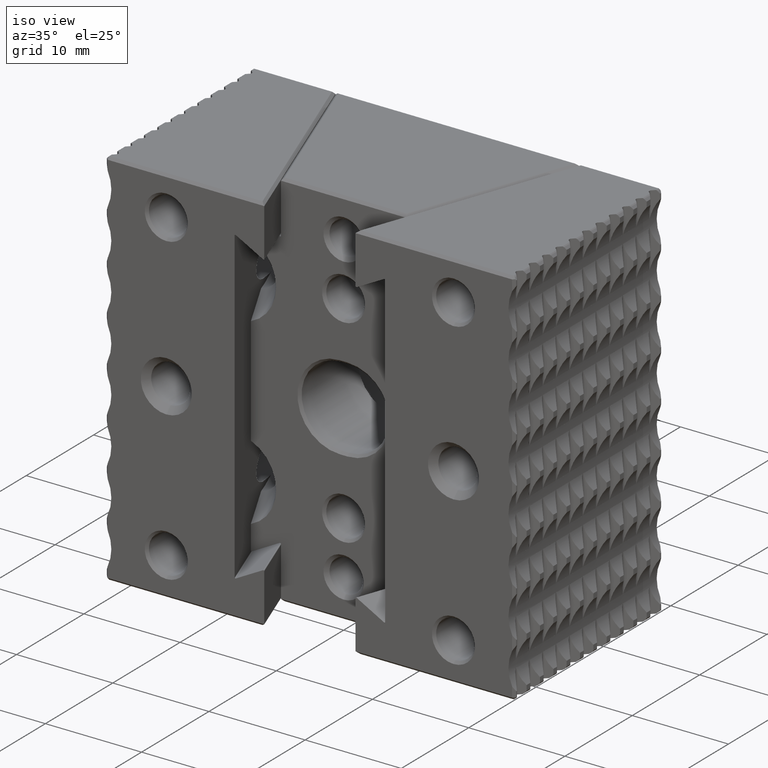
[diagram: clean part render]
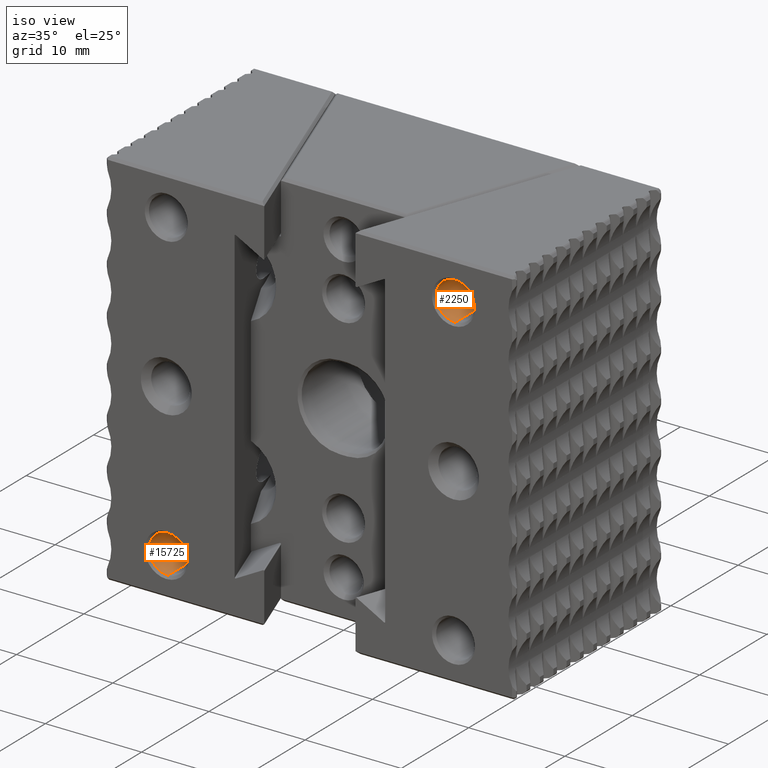
[diagram: same view with one multi-face feature highlighted, each face labeled with its STEP entity id]
A machine part, iso view. The highlighted faces form ONE feature: a constant-radius fillet chain: 2 tangent blend faces with common blend radius 1.9875 mm. The faces share edges in the B-rep.
Their STEP definitions:
[1] entity #15725 (Cylinder):
#427 = EDGE_CURVE ( 'NONE', #26668, #1863, #8106, .T. ) ;
#492 = FACE_OUTER_BOUND ( 'NONE', #30211, .T. ) ;
#998 = CARTESIAN_POINT ( 'NONE',  ( 0.2500000000000000000, 0.2000000000000000111, -0.7032499999999999307 ) ) ;
#1863 = VERTEX_POINT ( 'NONE', #998 ) ;
#3620 = CARTESIAN_POINT ( 'NONE',  ( 0.2500000000000000000, 0.2000000000000000111, -0.5467500000000000693 ) ) ;
#4140 = ORIENTED_EDGE ( 'NONE', *, *, #29918, .T. ) ;
#5367 = DIRECTION ( 'NONE',  ( 0.0000000000000000000, -1.000000000000000000, 0.0000000000000000000 ) ) ;
#5621 = CYLINDRICAL_SURFACE ( 'NONE', #19088, 0.07824999999999990297 ) ;
#7206 = CARTESIAN_POINT ( 'NONE',  ( 0.2500000000000000000, 0.01000000000000064379, -0.5467500000000000693 ) ) ;
#7486 = DIRECTION ( 'NONE',  ( 0.0000000000000000000, 0.0000000000000000000, -1.000000000000000000 ) ) ;
#7726 = VERTEX_POINT ( 'NONE', #17359 ) ;
#7804 = CARTESIAN_POINT ( 'NONE',  ( 0.2500000000000000000, 0.2000000000000000111, -0.6250000000000000000 ) ) ;
#8106 = CIRCLE ( 'NONE', #16648, 0.07824999999999990297 ) ;
#10047 = DIRECTION ( 'NONE',  ( -0.0000000000000000000, -1.000000000000000000, -0.0000000000000000000 ) ) ;
#10357 = DIRECTION ( 'NONE',  ( 0.0000000000000000000, 0.0000000000000000000, -1.000000000000000000 ) ) ;
#11691 = CARTESIAN_POINT ( 'NONE',  ( 0.2500000000000000000, 0.2000000000000000111, -0.5467500000000000693 ) ) ;
#11866 = CARTESIAN_POINT ( 'NONE',  ( 0.2500000000000000000, 0.2000000000000000111, -0.7032499999999999307 ) ) ;
#14178 = ORIENTED_EDGE ( 'NONE', *, *, #427, .F. ) ;
#15243 = AXIS2_PLACEMENT_3D ( 'NONE', #20597, #5367, #23192 ) ;
#15725 = ADVANCED_FACE ( 'NONE', ( #492 ), #5621, .F. ) ;
#16648 = AXIS2_PLACEMENT_3D ( 'NONE', #7804, #25608, #10357 ) ;
#17359 = CARTESIAN_POINT ( 'NONE',  ( 0.2500000000000000000, 0.01000000000000064379, -0.7032499999999999307 ) ) ;
#18607 = ORIENTED_EDGE ( 'NONE', *, *, #29515, .F. ) ;
#19088 = AXIS2_PLACEMENT_3D ( 'NONE', #25289, #10047, #7486 ) ;
#19218 = VECTOR ( 'NONE', #19538, 39.37007874015748143 ) ;
#19538 = DIRECTION ( 'NONE',  ( -0.0000000000000000000, -1.000000000000000000, -0.0000000000000000000 ) ) ;
#20300 = CIRCLE ( 'NONE', #15243, 0.07824999999999997236 ) ;
#20597 = CARTESIAN_POINT ( 'NONE',  ( 0.2500000000000000000, 0.01000000000000064379, -0.6250000000000000000 ) ) ;
#21333 = VERTEX_POINT ( 'NONE', #7206 ) ;
#21402 = DIRECTION ( 'NONE',  ( -0.0000000000000000000, -1.000000000000000000, -0.0000000000000000000 ) ) ;
#23192 = DIRECTION ( 'NONE',  ( 0.0000000000000000000, 0.0000000000000000000, 1.000000000000000000 ) ) ;
#25289 = CARTESIAN_POINT ( 'NONE',  ( 0.2500000000000000000, 0.2000000000000000111, -0.6250000000000000000 ) ) ;
#25571 = VECTOR ( 'NONE', #21402, 39.37007874015748143 ) ;
#25608 = DIRECTION ( 'NONE',  ( 0.0000000000000000000, -1.000000000000000000, 0.0000000000000000000 ) ) ;
#26668 = VERTEX_POINT ( 'NONE', #11691 ) ;
#26784 = LINE ( 'NONE', #11866, #19218 ) ;
#29515 = EDGE_CURVE ( 'NONE', #1863, #7726, #26784, .T. ) ;
#29802 = ORIENTED_EDGE ( 'NONE', *, *, #31521, .T. ) ;
#29918 = EDGE_CURVE ( 'NONE', #26668, #21333, #31531, .T. ) ;
#30211 = EDGE_LOOP ( 'NONE', ( #14178, #4140, #29802, #18607 ) ) ;
#31521 = EDGE_CURVE ( 'NONE', #21333, #7726, #20300, .T. ) ;
#31531 = LINE ( 'NONE', #3620, #25571 ) ;
[2] entity #2250 (Cylinder):
#998 = CARTESIAN_POINT ( 'NONE',  ( 0.2500000000000000000, 0.2000000000000000111, -0.7032499999999999307 ) ) ;
#1863 = VERTEX_POINT ( 'NONE', #998 ) ;
#2250 = ADVANCED_FACE ( 'NONE', ( #19157 ), #18351, .F. ) ;
#3620 = CARTESIAN_POINT ( 'NONE',  ( 0.2500000000000000000, 0.2000000000000000111, -0.5467500000000000693 ) ) ;
#4603 = DIRECTION ( 'NONE',  ( 0.0000000000000000000, 0.0000000000000000000, -1.000000000000000000 ) ) ;
#6733 = AXIS2_PLACEMENT_3D ( 'NONE', #9234, #27051, #11807 ) ;
#7206 = CARTESIAN_POINT ( 'NONE',  ( 0.2500000000000000000, 0.01000000000000064379, -0.5467500000000000693 ) ) ;
#7365 = CIRCLE ( 'NONE', #6733, 0.07824999999999990297 ) ;
#7726 = VERTEX_POINT ( 'NONE', #17359 ) ;
#8671 = CARTESIAN_POINT ( 'NONE',  ( 0.2500000000000000000, 0.01000000000000064379, -0.6250000000000000000 ) ) ;
#9234 = CARTESIAN_POINT ( 'NONE',  ( 0.2500000000000000000, 0.2000000000000000111, -0.6250000000000000000 ) ) ;
#9499 = CARTESIAN_POINT ( 'NONE',  ( 0.2500000000000000000, 0.2000000000000000111, -0.6250000000000000000 ) ) ;
#11207 = DIRECTION ( 'NONE',  ( 0.0000000000000000000, 0.0000000000000000000, 1.000000000000000000 ) ) ;
#11691 = CARTESIAN_POINT ( 'NONE',  ( 0.2500000000000000000, 0.2000000000000000111, -0.5467500000000000693 ) ) ;
#11807 = DIRECTION ( 'NONE',  ( 0.0000000000000000000, 0.0000000000000000000, -1.000000000000000000 ) ) ;
#11866 = CARTESIAN_POINT ( 'NONE',  ( 0.2500000000000000000, 0.2000000000000000111, -0.7032499999999999307 ) ) ;
#12089 = ORIENTED_EDGE ( 'NONE', *, *, #29918, .F. ) ;
#13968 = EDGE_LOOP ( 'NONE', ( #12089, #16853, #24460, #23050 ) ) ;
#16554 = AXIS2_PLACEMENT_3D ( 'NONE', #9499, #29739, #4603 ) ;
#16853 = ORIENTED_EDGE ( 'NONE', *, *, #26704, .F. ) ;
#17359 = CARTESIAN_POINT ( 'NONE',  ( 0.2500000000000000000, 0.01000000000000064379, -0.7032499999999999307 ) ) ;
#17470 = CIRCLE ( 'NONE', #29938, 0.07824999999999997236 ) ;
#18351 = CYLINDRICAL_SURFACE ( 'NONE', #16554, 0.07824999999999990297 ) ;
#19157 = FACE_OUTER_BOUND ( 'NONE', #13968, .T. ) ;
#19218 = VECTOR ( 'NONE', #19538, 39.37007874015748143 ) ;
#19538 = DIRECTION ( 'NONE',  ( -0.0000000000000000000, -1.000000000000000000, -0.0000000000000000000 ) ) ;
#21333 = VERTEX_POINT ( 'NONE', #7206 ) ;
#21402 = DIRECTION ( 'NONE',  ( -0.0000000000000000000, -1.000000000000000000, -0.0000000000000000000 ) ) ;
#23050 = ORIENTED_EDGE ( 'NONE', *, *, #24600, .T. ) ;
#24460 = ORIENTED_EDGE ( 'NONE', *, *, #29515, .T. ) ;
#24600 = EDGE_CURVE ( 'NONE', #7726, #21333, #17470, .T. ) ;
#25571 = VECTOR ( 'NONE', #21402, 39.37007874015748143 ) ;
#26466 = DIRECTION ( 'NONE',  ( 0.0000000000000000000, -1.000000000000000000, 0.0000000000000000000 ) ) ;
#26668 = VERTEX_POINT ( 'NONE', #11691 ) ;
#26704 = EDGE_CURVE ( 'NONE', #1863, #26668, #7365, .T. ) ;
#26784 = LINE ( 'NONE', #11866, #19218 ) ;
#27051 = DIRECTION ( 'NONE',  ( 0.0000000000000000000, -1.000000000000000000, 0.0000000000000000000 ) ) ;
#29515 = EDGE_CURVE ( 'NONE', #1863, #7726, #26784, .T. ) ;
#29739 = DIRECTION ( 'NONE',  ( -0.0000000000000000000, -1.000000000000000000, -0.0000000000000000000 ) ) ;
#29918 = EDGE_CURVE ( 'NONE', #26668, #21333, #31531, .T. ) ;
#29938 = AXIS2_PLACEMENT_3D ( 'NONE', #8671, #26466, #11207 ) ;
#31531 = LINE ( 'NONE', #3620, #25571 ) ;